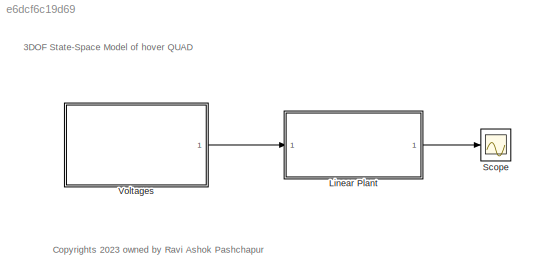
MODEL slx_e6dcf6c19d69
KIND model
CONFIG AbsTol = auto
CONFIG EnableMultiTasking = off
CONFIG FixedStep = auto
CONFIG MaxStep = auto
CONFIG MinStep = auto
CONFIG RelTol = 1e-3
CONFIG SampleTimeConstraint = Unconstrained
CONFIG SolverName = VariableStepAuto
CONFIG StartTime = 0.0
CONFIG StopTime = 10.0
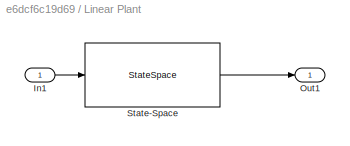
BLOCK [SubSystem] Linear Plant
  Ports = [1, 1]
  RequestExecContextInheritance = off
BLOCK [Inport] Linear Plant/In1
BLOCK [Outport] Linear Plant/Out1
BLOCK [StateSpace] Linear Plant/State-Space
  A = A
  B = B
  C = C
  D = D
  InitialCondition = 0
  Ports = [1, 1]
BLOCK [Scope] Scope
  Floating = off
  NumInputPorts = 1
  Ports = [1]
  ScopeSpecificationString = Simulink.scopes.TimeScopeBlockCfg('CurrentConfiguration', extmgr.ConfigurationSet(extmgr.Configuration('Core','General UI',true),extmgr.Configuration('Core','Source UI',true),extmgr.Configuration('Sources','WiredSimulink',true),extmgr.Configuration('Visuals','Time Domain',true,'SerializedDisplays',{struct('MinYLimReal','-14.42542','MaxYLimReal','60.86329','YLabelReal','','MinYLimMag','0.00000','Ma...<+1496ch>
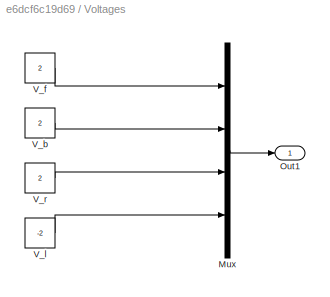
BLOCK [SubSystem] Voltages
  Ports = [0, 1]
  RequestExecContextInheritance = off
BLOCK [Mux] Voltages/Mux
  DisplayOption = bar
  Ports = [4, 1]
BLOCK [Outport] Voltages/Out1
BLOCK [Constant] Voltages/V_b
  Value = 2
BLOCK [Constant] Voltages/V_f
  Value = 2
BLOCK [Constant] Voltages/V_l
  Value = -2
BLOCK [Constant] Voltages/V_r
  Value = 2
ANNOTATION (root): 3DOF State-Space Model of hover QUAD
ANNOTATION (root): Copyrights 2023 owned by Ravi Ashok Pashchapur
LINE Linear Plant/In1:1 -> Linear Plant/State-Space:1
LINE Linear Plant/State-Space:1 -> Linear Plant/Out1:1
LINE Linear Plant:1 -> Scope:1
LINE Voltages/Mux:1 -> Voltages/Out1:1
LINE Voltages/V_b:1 -> Voltages/Mux:2
LINE Voltages/V_f:1 -> Voltages/Mux:1
LINE Voltages/V_l:1 -> Voltages/Mux:4
LINE Voltages/V_r:1 -> Voltages/Mux:3
LINE Voltages:1 -> Linear Plant:1
